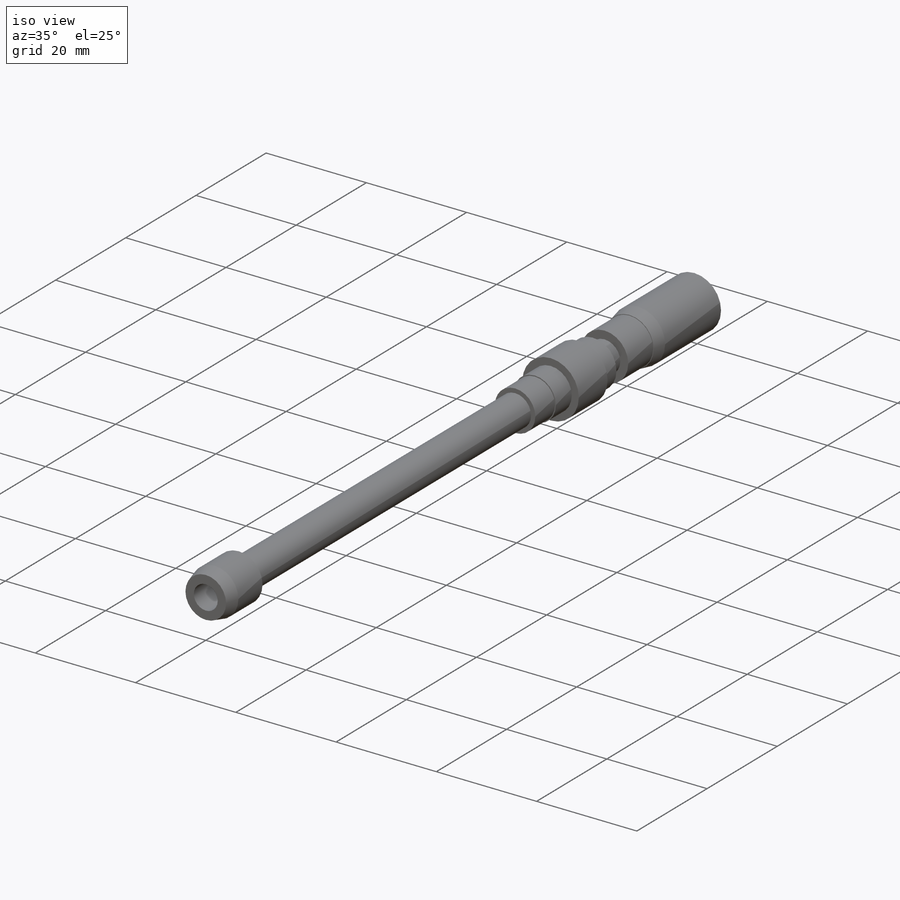
[diagram: iso view]
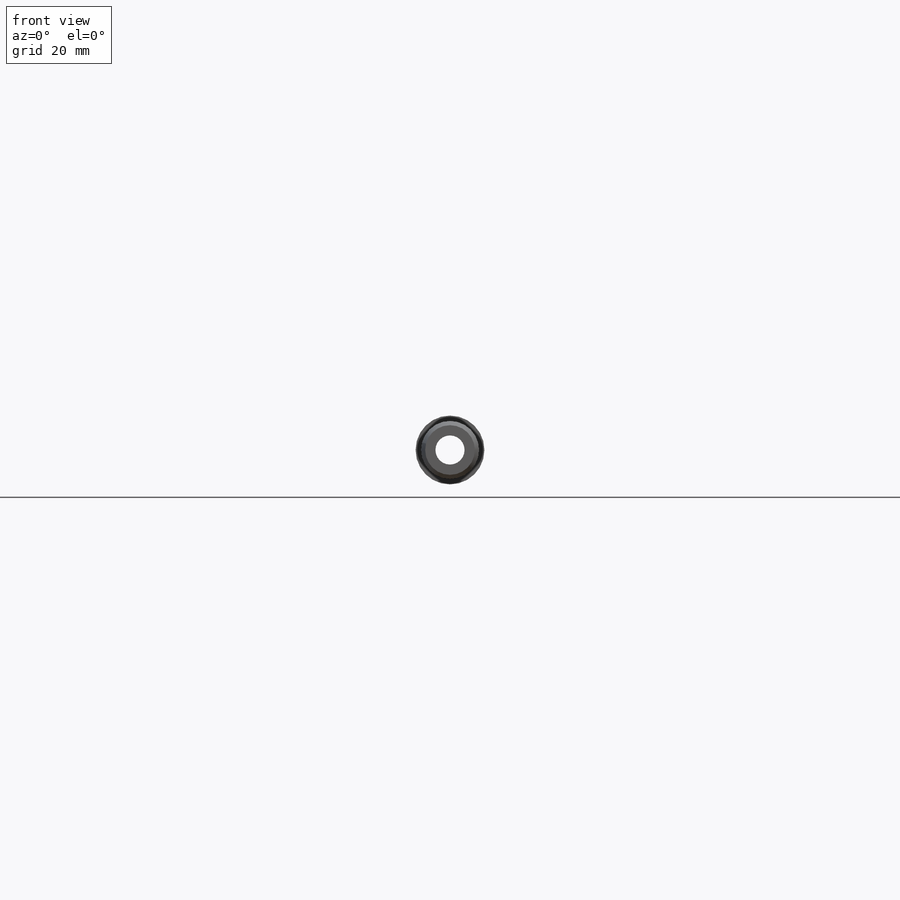
[diagram: front view]
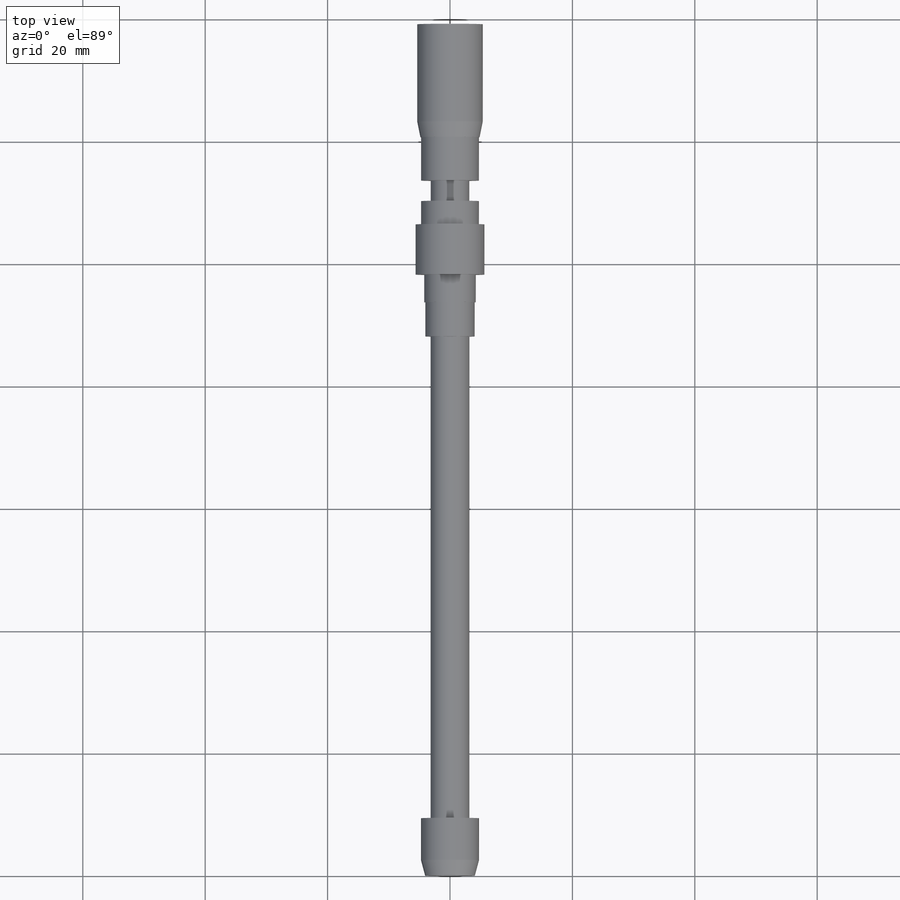
[diagram: top view]
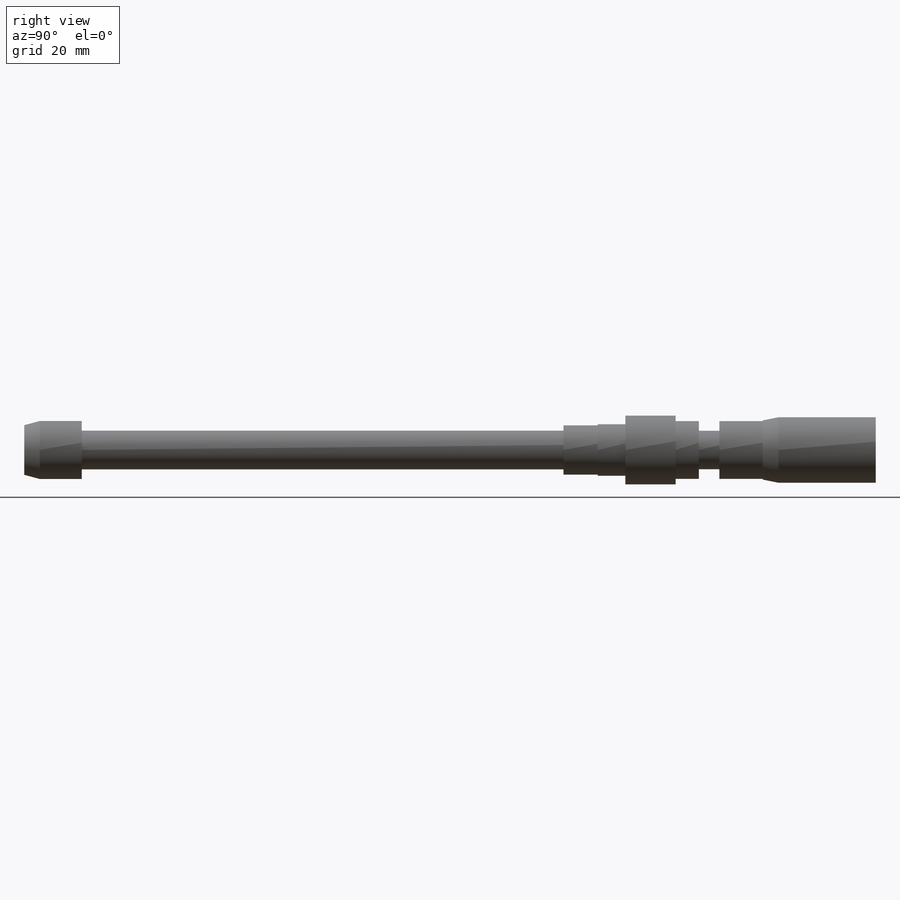
[diagram: right view]
SOLIDWORKS PART (.sldprt)
format: sldprt  version: not decoded by parser v0  size: 265,216 bytes
history: native  units: mm
features: sketch x10, extrude x9, chamfer x2, material x1, cut_extrude x1 (+11 scaffold rows collapsed)
feature tree (34):
  scaffold x11  (default folders/planes/origin — collapsed)
  material  "Material <not specified>"
  sketch  "Sketch1"  dims[D1=9.4742mm]
  extrude  "Boss-Extrude1"  Depth=9.398mm
  sketch  "Sketch2"  dims[D1=6.35mm]
  extrude  "Boss-Extrude2"  Depth=78.74mm
  sketch  "Sketch3"  dims[D1=8.0518mm]
  extrude  "Boss-Extrude3"  Depth=5.588mm
  sketch  "Sketch4"  dims[D1=8.4328mm]
  extrude  "Boss-Extrude4"  Depth=4.5212mm
  sketch  "Sketch5"  dims[D1=11.2522mm]
  extrude  "Boss-Extrude5"  Depth=8.2042mm
  sketch  "Sketch6"  dims[D1=9.4488mm]
  extrude  "Boss-Extrude6"  Depth=3.81mm
  sketch  "Sketch7"  dims[D1=6.2738mm]
  extrude  "Boss-Extrude7"  Depth=3.3528mm
  sketch  "Sketch8"  dims[D1=9.4488mm]
  extrude  "Boss-Extrude8"  Depth=7.0866mm
  sketch  "Sketch9"  dims[D1=10.6934mm]
  extrude  "Boss-Extrude9"  Depth=18.4658mm
  chamfer  "Chamfer3"  Distance=0.508mm
  chamfer  "Chamfer4"  Distance=2.54mm Angle=15deg
  sketch  "Sketch10"  dims[D1=4.7625mm]
  cut_extrude  "Cut-Extrude1"  [1 undecoded]
decode coverage: 21 of 22 modeling features carry decoded parameters
note: 1 parameter value undecoded
note: suppression state not decoded; provenance and decode notes live in map.json
